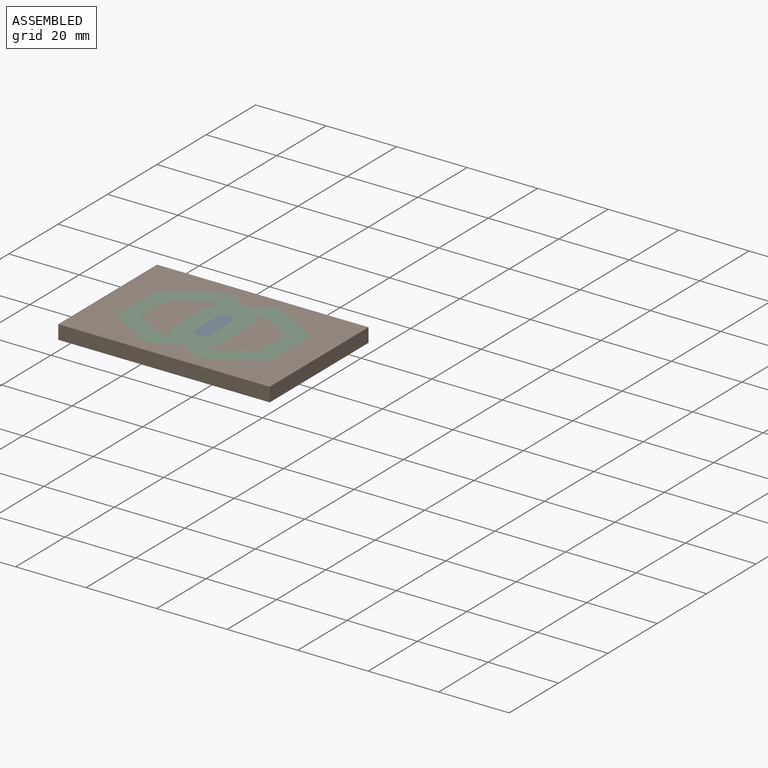
[diagram: assembled view]
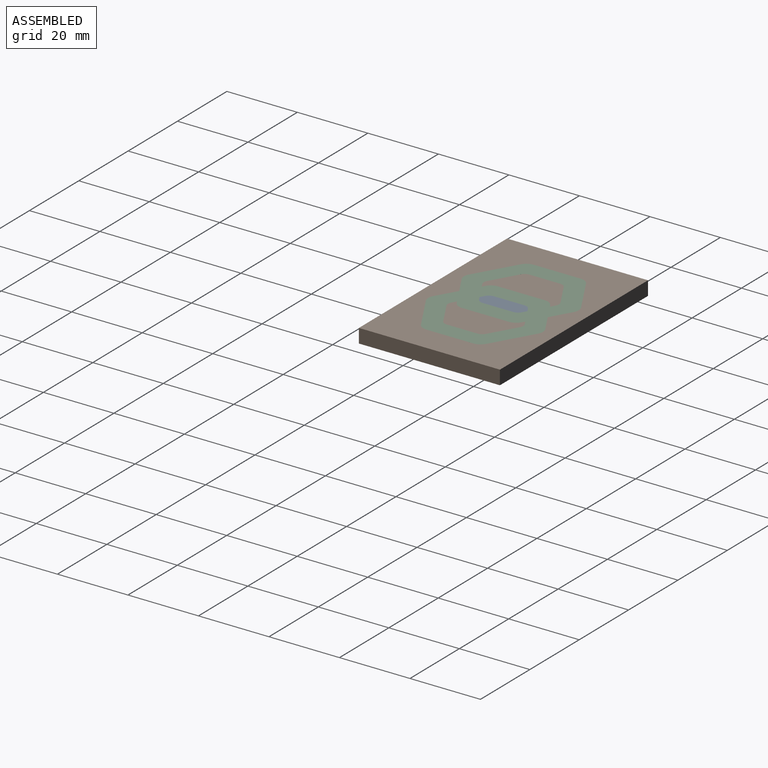
[diagram: assembled view, second angle]
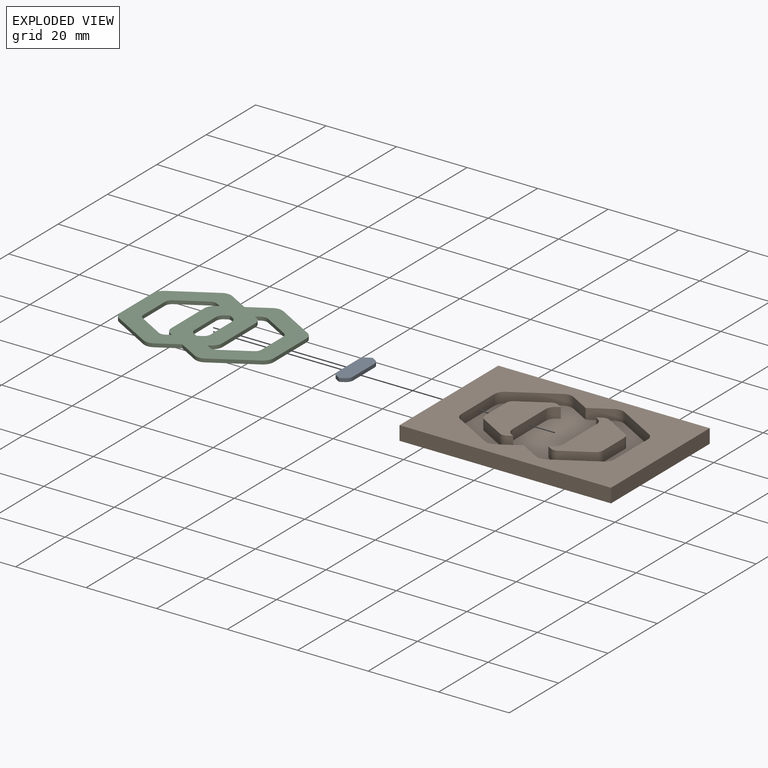
[diagram: exploded view]
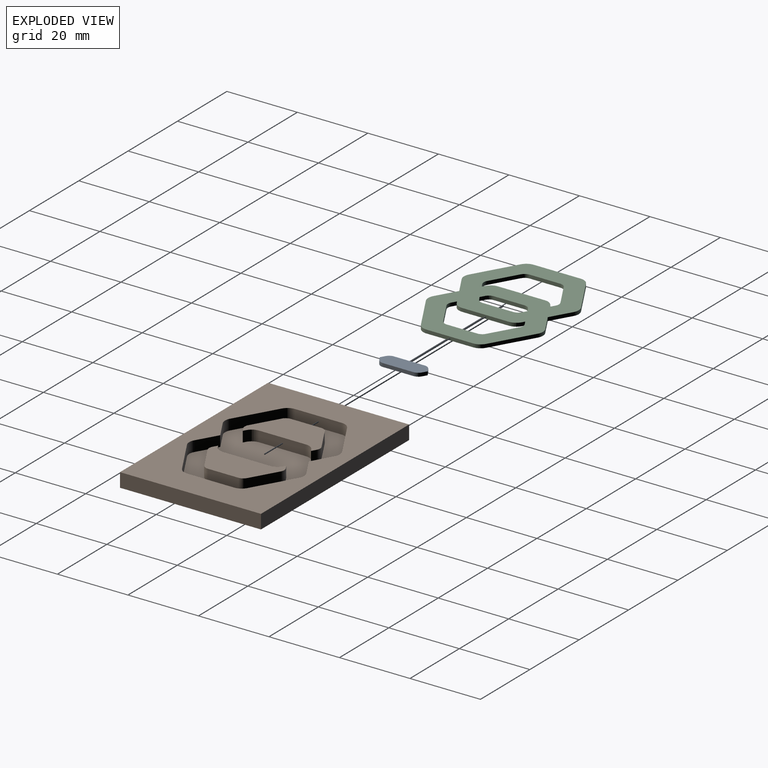
[diagram: exploded view, second angle]
ASSEMBLY  parts=3 mates=2
PART A: 12 faces, bbox 4.5x13.6x1 mm
  f0: cylinder r=2mm len=1.73mm, axis (0,0,-1), area 2.1mm2, adj f1,f9,f10,f11
  f1: plane 8.66x1mm, normal (1,0,0), area 8.7mm2, adj f0,f2,f10,f11
  f2: cylinder r=2mm len=1.73mm, axis (0,0,-1), area 2.1mm2, adj f1,f3,f10,f11
  f3: plane 1.25x1mm, normal (0.5,0.87,0), area 1.4mm2, adj f2,f4,f10,f11
  f4: plane 1.25x1mm, normal (-0.5,0.87,0), area 1.4mm2, adj f3,f5,f10,f11
  f5: cylinder r=2mm len=1.73mm, axis (0,0,-1), area 2.1mm2, adj f4,f6,f10,f11
  f6: plane 8.66x1mm, normal (-1,0,0), area 8.7mm2, adj f5,f7,f10,f11
  f7: cylinder r=2mm len=1.73mm, axis (0,0,-1), area 2.1mm2, adj f6,f8,f10,f11
  f8: plane 1.25x1mm, normal (-0.5,-0.87,0), area 1.4mm2, adj f7,f9,f10,f11
  f9: plane 1.25x1mm, normal (0.5,-0.87,0), area 1.4mm2, adj f0,f8,f10,f11
  f10: plane 13.57x4.5mm, normal (0,0,1), area 54.3mm2, adj f0,f1,f2,f3,f4,f5,f6,f7
  f11: plane 13.57x4.5mm, normal (0,0,-1), area 54.3mm2, adj f0,f1,f2,f3,f4,f5,f6,f7
PART B: 55 faces, bbox 60x40x4 mm
  f0: cylinder r=3mm len=3mm, axis (0,0,-1), area 9.4mm2, adj f1,f21,f22,f24
  f1: plane 5.75x3.32mm, normal (-0.5,-0.87,0), area 19.9mm2, adj f0,f2,f22,f24
  f2: plane 5.75x3.32mm, normal (0.5,-0.87,0), area 19.9mm2, adj f1,f3,f22,f24
  f3: cylinder r=3mm len=3mm, axis (0,0,-1), area 9.4mm2, adj f2,f4,f22,f24
  f4: plane 11.5x6.64mm, normal (-0.5,-0.87,0), area 39.8mm2, adj f3,f5,f22,f24
  f5: cylinder r=3mm len=3mm, axis (0,0,-1), area 9.4mm2, adj f4,f6,f22,f24
  f6: plane 13.28x3mm, normal (-1,0,0), area 39.8mm2, adj f5,f7,f22,f24
  f7: cylinder r=3mm len=3mm, axis (0,0,-1), area 9.4mm2, adj f6,f8,f22,f24
  f8: plane 11.5x6.64mm, normal (-0.5,0.87,0), area 39.8mm2, adj f7,f9,f22,f24
  f9: cylinder r=3mm len=3mm, axis (0,0,-1), area 9.4mm2, adj f8,f10,f22,f24
  f10: plane 5.75x3.32mm, normal (0.5,0.87,0), area 19.9mm2, adj f9,f11,f22,f24
  f11: plane 5.75x3.32mm, normal (-0.5,0.87,0), area 19.9mm2, adj f10,f12,f22,f24
  f12: cylinder r=3mm len=3mm, axis (0,0,-1), area 9.4mm2, adj f11,f13,f22,f24
  f13: plane 11.5x6.64mm, normal (0.5,0.87,0), area 39.8mm2, adj f12,f14,f22,f24
  f14: cylinder r=3mm len=3mm, axis (0,0,-1), area 9.4mm2, adj f13,f15,f22,f24
  f15: plane 13.28x3mm, normal (1,0,0), area 39.8mm2, adj f14,f16,f22,f24
  f16: cylinder r=3mm len=3mm, axis (0,0,-1), area 9.4mm2, adj f15,f21,f22,f24
  f17: plane 40x4mm, normal (1,0,0), area 160mm2, adj f18,f20,f22,f23
  f18: plane 60x4mm, normal (0,1,0), area 240mm2, adj f17,f19,f22,f23
  f19: plane 40x4mm, normal (-1,0,0), area 160mm2, adj f18,f20,f22,f23
  f20: plane 60x4mm, normal (0,-1,0), area 240mm2, adj f17,f19,f22,f23
  f21: plane 11.5x6.64mm, normal (0.5,-0.87,0), area 39.8mm2, adj f0,f16,f22,f24
  f22: plane 60x40mm, normal (0,0,1), area 1250.7mm2, adj f0,f1,f2,f3,f4,f5,f6,f7
  f23: plane 60x40mm, normal (0,0,-1), area 2400mm2, adj f17,f18,f19,f20
  f24: plane 43.5x32.56mm, normal (0,0,1), area 824.8mm2, adj f0,f1,f2,f3,f4,f5,f6,f7
  f25: plane 21.32x11.75mm, normal (0,0,1), area 162.3mm2, adj f26,f27,f28,f29,f30,f31,f32,f33
  f26: plane 3x1.25mm, normal (0.5,-0.87,0), area 4.3mm2, adj f24,f25,f27,f39
  f27: cylinder r=2mm len=3mm, axis (0,0,-1), area 6.3mm2, adj f24,f25,f26,f28
  f28: plane 7.5x4.33mm, normal (-0.5,-0.87,0), area 26mm2, adj f24,f25,f27,f29
  f29: cylinder r=2mm len=3mm, axis (0,0,-1), area 6.3mm2, adj f24,f25,f28,f30
  f30: plane 8.66x3mm, normal (-1,0,0), area 26mm2, adj f24,f25,f29,f31
  f31: cylinder r=2mm len=3mm, axis (0,0,-1), area 6.3mm2, adj f24,f25,f30,f32
  f32: plane 7.5x4.33mm, normal (-0.5,0.87,0), area 26mm2, adj f24,f25,f31,f33
  f33: cylinder r=2mm len=3mm, axis (0,0,-1), area 6.3mm2, adj f24,f25,f32,f34
  f34: plane 3x1.25mm, normal (0.5,0.87,0), area 4.3mm2, adj f24,f25,f33,f35
  f35: plane 3x0.75mm, normal (0.5,-0.87,0), area 2.6mm2, adj f24,f25,f34,f36
  f36: cylinder r=3mm len=3mm, axis (0,0,-1), area 9.4mm2, adj f24,f25,f35,f37
  f37: plane 13.28x3mm, normal (1,0,0), area 39.8mm2, adj f24,f25,f36,f38
  f38: cylinder r=3mm len=3mm, axis (0,0,-1), area 9.4mm2, adj f24,f25,f37,f39
  f39: plane 3x0.75mm, normal (0.5,0.87,0), area 2.6mm2, adj f24,f25,f26,f38
  f40: plane 21.32x11.75mm, normal (0,0,1), area 162.3mm2, adj f41,f42,f43,f44,f45,f46,f47,f48
  f41: plane 3x1.25mm, normal (-0.5,0.87,0), area 4.3mm2, adj f24,f40,f42,f54
  f42: cylinder r=2mm len=3mm, axis (0,0,-1), area 6.3mm2, adj f24,f40,f41,f43
  f43: plane 7.5x4.33mm, normal (0.5,0.87,0), area 26mm2, adj f24,f40,f42,f44
  f44: cylinder r=2mm len=3mm, axis (0,0,-1), area 6.3mm2, adj f24,f40,f43,f45
  f45: plane 8.66x3mm, normal (1,0,0), area 26mm2, adj f24,f40,f44,f46
  f46: cylinder r=2mm len=3mm, axis (0,0,-1), area 6.3mm2, adj f24,f40,f45,f47
  f47: plane 7.5x4.33mm, normal (0.5,-0.87,0), area 26mm2, adj f24,f40,f46,f48
  f48: cylinder r=2mm len=3mm, axis (0,0,-1), area 6.3mm2, adj f24,f40,f47,f49
  f49: plane 3x1.25mm, normal (-0.5,-0.87,0), area 4.3mm2, adj f24,f40,f48,f50
  f50: plane 3x0.75mm, normal (-0.5,0.87,0), area 2.6mm2, adj f24,f40,f49,f51
  f51: cylinder r=3mm len=3mm, axis (0,0,-1), area 9.4mm2, adj f24,f40,f50,f52
  f52: plane 13.28x3mm, normal (-1,0,0), area 39.8mm2, adj f24,f40,f51,f53
  f53: cylinder r=3mm len=3mm, axis (0,0,-1), area 9.4mm2, adj f24,f40,f52,f54
  f54: plane 3x0.75mm, normal (-0.5,-0.87,0), area 2.6mm2, adj f24,f40,f41,f53
PART C: 58 faces, bbox 43.5x32.6x1 mm
  f0: plane 1x0.75mm, normal (0.5,0.87,0), area 0.9mm2, adj f1,f55,f56,f57
  f1: plane 1.25x1mm, normal (0.5,-0.87,0), area 1.4mm2, adj f0,f2,f56,f57
  f2: cylinder r=2mm len=2mm, axis (0,0,-1), area 2.1mm2, adj f1,f3,f56,f57
  f3: plane 7.5x4.33mm, normal (-0.5,-0.87,0), area 8.7mm2, adj f2,f4,f56,f57
  f4: cylinder r=2mm len=1.73mm, axis (0,0,-1), area 2.1mm2, adj f3,f5,f56,f57
  f5: plane 8.66x1mm, normal (-1,0,0), area 8.7mm2, adj f4,f6,f56,f57
  f6: cylinder r=2mm len=1.73mm, axis (0,0,-1), area 2.1mm2, adj f5,f7,f56,f57
  f7: plane 7.5x4.33mm, normal (-0.5,0.87,0), area 8.7mm2, adj f6,f8,f56,f57
  f8: cylinder r=2mm len=2mm, axis (0,0,-1), area 2.1mm2, adj f7,f9,f56,f57
  f9: plane 1.25x1mm, normal (0.5,0.87,0), area 1.4mm2, adj f8,f10,f56,f57
  f10: plane 1x0.75mm, normal (0.5,-0.87,0), area 0.9mm2, adj f9,f11,f56,f57
  f11: cylinder r=3mm len=2.6mm, axis (0,0,-1), area 3.1mm2, adj f10,f12,f56,f57
  f12: plane 13.28x1mm, normal (1,0,0), area 13.3mm2, adj f11,f55,f56,f57
  f13: plane 1.25x1mm, normal (0.5,-0.87,0), area 1.4mm2, adj f14,f52,f56,f57
  f14: plane 1.25x1mm, normal (-0.5,-0.87,0), area 1.4mm2, adj f13,f15,f56,f57
  f15: cylinder r=2mm len=1.73mm, axis (0,0,-1), area 2.1mm2, adj f14,f16,f56,f57
  f16: plane 8.66x1mm, normal (-1,0,0), area 8.7mm2, adj f15,f17,f56,f57
  f17: cylinder r=2mm len=1.73mm, axis (0,0,-1), area 2.1mm2, adj f16,f18,f56,f57
  f18: plane 1.25x1mm, normal (-0.5,0.87,0), area 1.4mm2, adj f17,f19,f56,f57
  f19: plane 1.25x1mm, normal (0.5,0.87,0), area 1.4mm2, adj f18,f20,f56,f57
  f20: cylinder r=2mm len=1.73mm, axis (0,0,-1), area 2.1mm2, adj f19,f21,f56,f57
  f21: plane 8.66x1mm, normal (1,0,0), area 8.7mm2, adj f20,f52,f56,f57
  f22: plane 1x0.75mm, normal (-0.5,-0.87,0), area 0.9mm2, adj f23,f53,f56,f57
  f23: plane 1.25x1mm, normal (-0.5,0.87,0), area 1.4mm2, adj f22,f24,f56,f57
  f24: cylinder r=2mm len=2mm, axis (0,0,-1), area 2.1mm2, adj f23,f25,f56,f57
  f25: plane 7.5x4.33mm, normal (0.5,0.87,0), area 8.7mm2, adj f24,f26,f56,f57
  f26: cylinder r=2mm len=1.73mm, axis (0,0,-1), area 2.1mm2, adj f25,f27,f56,f57
  f27: plane 8.66x1mm, normal (1,0,0), area 8.7mm2, adj f26,f28,f56,f57
  f28: cylinder r=2mm len=1.73mm, axis (0,0,-1), area 2.1mm2, adj f27,f29,f56,f57
  f29: plane 7.5x4.33mm, normal (0.5,-0.87,0), area 8.7mm2, adj f28,f30,f56,f57
  f30: cylinder r=2mm len=2mm, axis (0,0,-1), area 2.1mm2, adj f29,f31,f56,f57
  f31: plane 1.25x1mm, normal (-0.5,-0.87,0), area 1.4mm2, adj f30,f32,f56,f57
  f32: plane 1x0.75mm, normal (-0.5,0.87,0), area 0.9mm2, adj f31,f33,f56,f57
  f33: cylinder r=3mm len=2.6mm, axis (0,0,-1), area 3.1mm2, adj f32,f34,f56,f57
  f34: plane 13.28x1mm, normal (-1,0,0), area 13.3mm2, adj f33,f53,f56,f57
  f35: plane 5.75x3.32mm, normal (0.5,-0.87,0), area 6.6mm2, adj f36,f54,f56,f57
  f36: plane 5.75x3.32mm, normal (-0.5,-0.87,0), area 6.6mm2, adj f35,f37,f56,f57
  f37: cylinder r=3mm len=3mm, axis (0,0,-1), area 3.1mm2, adj f36,f38,f56,f57
  f38: plane 11.5x6.64mm, normal (0.5,-0.87,0), area 13.3mm2, adj f37,f39,f56,f57
  f39: cylinder r=3mm len=2.6mm, axis (0,0,-1), area 3.1mm2, adj f38,f40,f56,f57
  f40: plane 13.28x1mm, normal (1,0,0), area 13.3mm2, adj f39,f41,f56,f57
  f41: cylinder r=3mm len=2.6mm, axis (0,0,-1), area 3.1mm2, adj f40,f42,f56,f57
  f42: plane 11.5x6.64mm, normal (0.5,0.87,0), area 13.3mm2, adj f41,f43,f56,f57
  f43: cylinder r=3mm len=3mm, axis (0,0,-1), area 3.1mm2, adj f42,f44,f56,f57
  f44: plane 5.75x3.32mm, normal (-0.5,0.87,0), area 6.6mm2, adj f43,f45,f56,f57
  f45: plane 5.75x3.32mm, normal (0.5,0.87,0), area 6.6mm2, adj f44,f46,f56,f57
  f46: cylinder r=3mm len=3mm, axis (0,0,-1), area 3.1mm2, adj f45,f47,f56,f57
  f47: plane 11.5x6.64mm, normal (-0.5,0.87,0), area 13.3mm2, adj f46,f48,f56,f57
  f48: cylinder r=3mm len=2.6mm, axis (0,0,-1), area 3.1mm2, adj f47,f49,f56,f57
  f49: plane 13.28x1mm, normal (-1,0,0), area 13.3mm2, adj f48,f50,f56,f57
  f50: cylinder r=3mm len=2.6mm, axis (0,0,-1), area 3.1mm2, adj f49,f51,f56,f57
  f51: plane 11.5x6.64mm, normal (-0.5,-0.87,0), area 13.3mm2, adj f50,f54,f56,f57
  f52: cylinder r=2mm len=1.73mm, axis (0,0,-1), area 2.1mm2, adj f13,f21,f56,f57
  f53: cylinder r=3mm len=2.6mm, axis (0,0,-1), area 3.1mm2, adj f22,f34,f56,f57
  f54: cylinder r=3mm len=3mm, axis (0,0,-1), area 3.1mm2, adj f35,f51,f56,f57
  f55: cylinder r=3mm len=2.6mm, axis (0,0,-1), area 3.1mm2, adj f0,f12,f56,f57
  f56: plane 43.5x32.56mm, normal (0,0,1), area 770.4mm2, adj f0,f1,f2,f3,f4,f5,f6,f7
  f57: plane 43.5x32.56mm, normal (0,0,-1), area 770.4mm2, adj f0,f1,f2,f3,f4,f5,f6,f7
PLACE A t=(147.94,-78.46,28.28)mm
PLACE B t=(67.87,-34,25.28)mm fixed
PLACE C t=(147.94,-78.46,28.28)mm
MATE fastened B.f15 <-> C.f49  axis (1,0,0) through (46.12,-34,29.28)mm
MATE fastened A.f6 <-> C.f21  axis (-1,0,0) through (65.62,-34,28.78)mm
